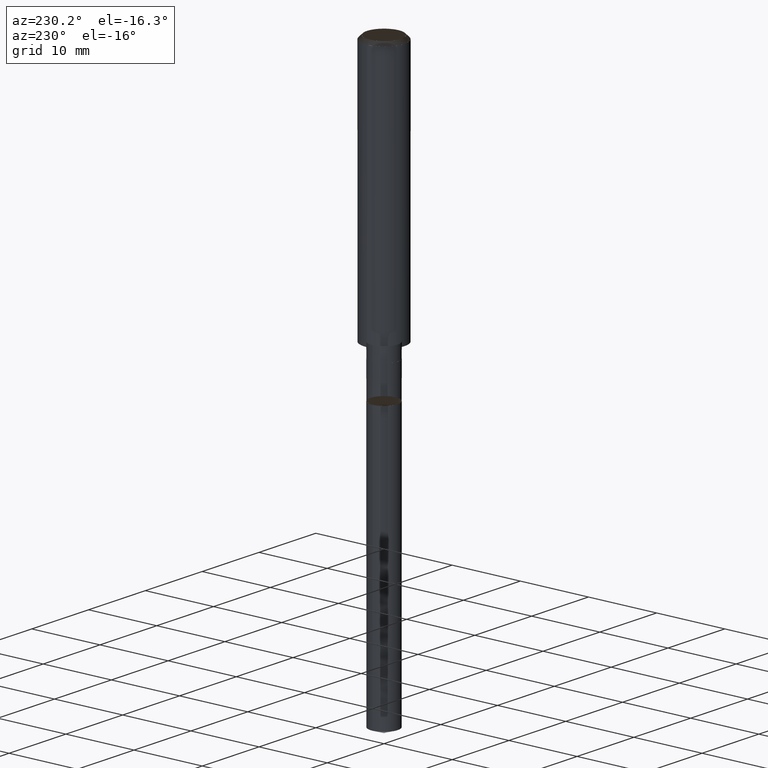
[diagram: clean part render]
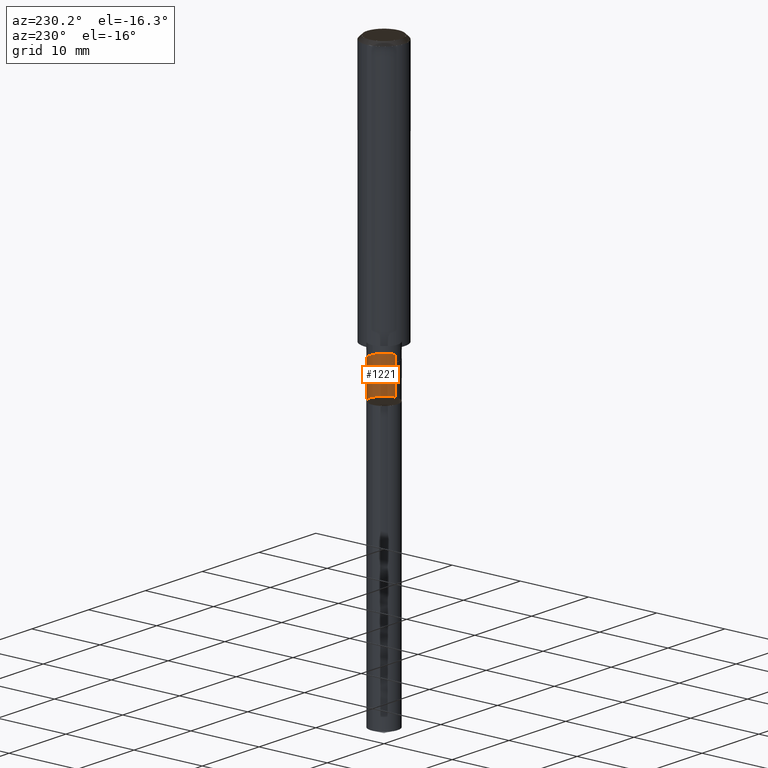
[diagram: same view with one face highlighted and labeled with its STEP entity id]
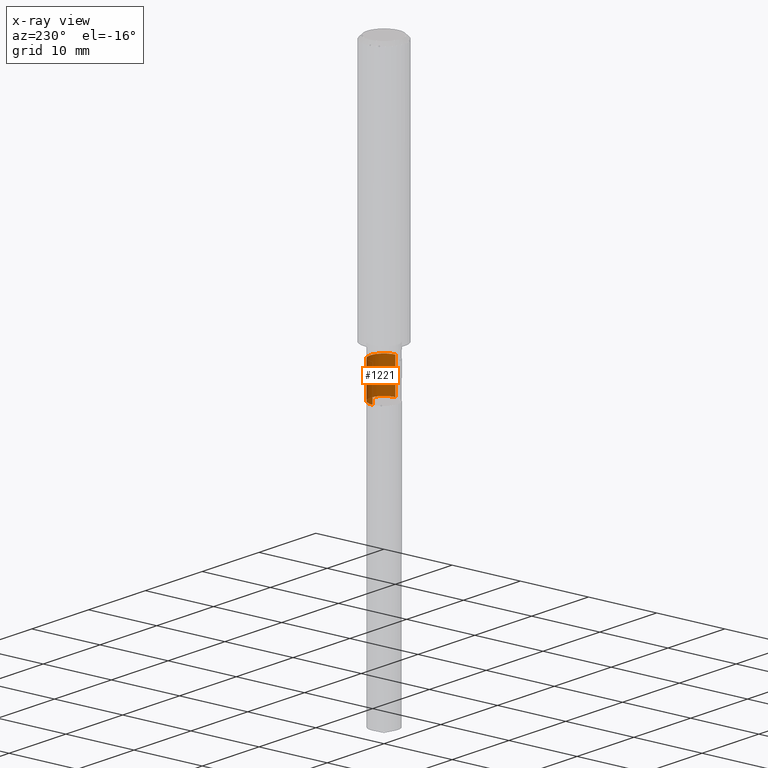
[diagram: x-ray of the same camera — body ghosted, the highlighted face saturated]
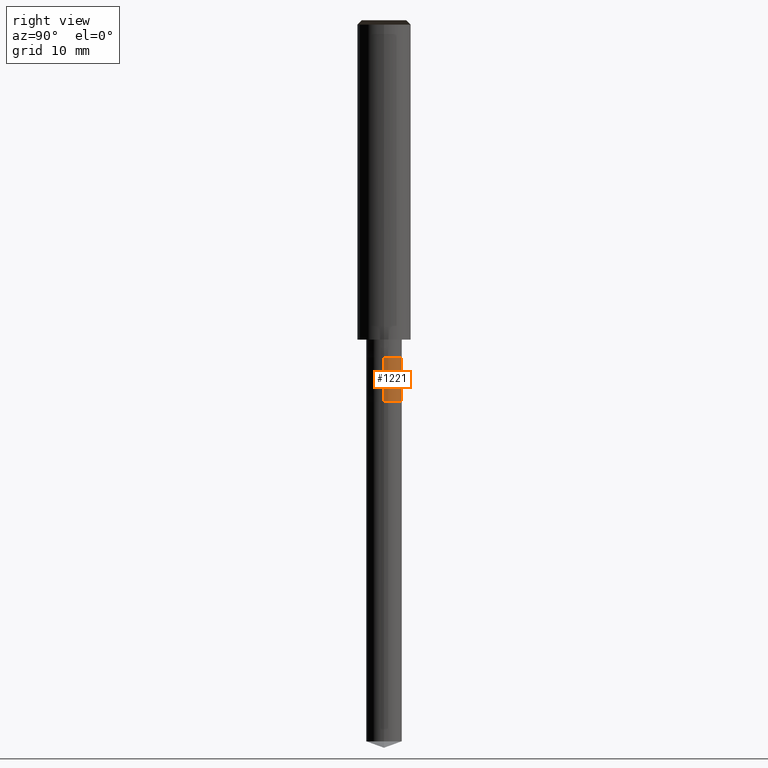
[diagram: same view with one face highlighted and labeled with its STEP entity id]
A machine part, auxiliary view. The second image highlights one B-rep face of the part: STEP entity #1221.
The next image is the same camera in x-ray: the body ghosted, the highlighted face saturated — about 0% of this face is hidden behind the body in this view.
A second angle (right view) of the same face is appended — the face is thin or edge-on in the first view.
In plain terms, the highlighted face is a freeform B-spline surface patch.
Its self-contained STEP definition (entity closure, byte-faithful):
#1020=CARTESIAN_POINT('',(2.0,0.0,-7.0));
#1021=CARTESIAN_POINT('',(2.0,2.0,-7.0));
#1022=CARTESIAN_POINT('',(0.0,2.0,-7.0));
#1023=CARTESIAN_POINT('',(-2.0,2.0,-7.0));
#1024=CARTESIAN_POINT('',(-2.0,0.0,-7.0));
#1032=CARTESIAN_POINT('',(2.0,0.0,-2.0));
#1033=CARTESIAN_POINT('',(2.0,2.0,-2.0));
#1034=CARTESIAN_POINT('',(0.0,2.0,-2.0));
#1035=CARTESIAN_POINT('',(-2.0,2.0,-2.0));
#1036=CARTESIAN_POINT('',(-2.0,0.0,-2.0));
#1202=(
BOUNDED_SURFACE()
B_SPLINE_SURFACE(1,2,(
(#1020,#1021,#1022,#1023,#1024),
(#1032,#1033,#1034,#1035,#1036)
), .UNSPECIFIED.,.F.,.F.,.F.)
B_SPLINE_SURFACE_WITH_KNOTS((2,2),(3,2,3),(
0.0,1.0),(
0.0,0.5,1.0), .UNSPECIFIED.)
GEOMETRIC_REPRESENTATION_ITEM()
RATIONAL_B_SPLINE_SURFACE(((1.0,0.707106781187,1.0,0.707106781187,1.0),
(1.0,0.707106781187,1.0,0.707106781187,1.0)
))
REPRESENTATION_ITEM('')
SURFACE()
);
#1203=(
BOUNDED_CURVE()
B_SPLINE_CURVE(2,(#1024,#1023,#1022,#1021,#1020),.UNSPECIFIED.,.F.,.F.)
B_SPLINE_CURVE_WITH_KNOTS((3,2,3),
(0.0,0.5,1.0),.UNSPECIFIED.)
CURVE()
GEOMETRIC_REPRESENTATION_ITEM()
RATIONAL_B_SPLINE_CURVE((1.0,0.707106781187,1.0,0.707106781187,1.0))
REPRESENTATION_ITEM('')
);
#1204=(
BOUNDED_CURVE()
B_SPLINE_CURVE(1,(#1020,#1032),.UNSPECIFIED.,.F.,.F.)
B_SPLINE_CURVE_WITH_KNOTS((2,2),
(0.0,1.0),.UNSPECIFIED.)
CURVE()
GEOMETRIC_REPRESENTATION_ITEM()
RATIONAL_B_SPLINE_CURVE((1.0,1.0))
REPRESENTATION_ITEM('')
);
#1205=(
BOUNDED_CURVE()
B_SPLINE_CURVE(2,(#1032,#1033,#1034,#1035,#1036),.UNSPECIFIED.,.F.,.F.)
B_SPLINE_CURVE_WITH_KNOTS((3,2,3),
(0.0,0.5,1.0),.UNSPECIFIED.)
CURVE()
GEOMETRIC_REPRESENTATION_ITEM()
RATIONAL_B_SPLINE_CURVE((1.0,0.707106781187,1.0,0.707106781187,1.0))
REPRESENTATION_ITEM('')
);
#1206=(
BOUNDED_CURVE()
B_SPLINE_CURVE(1,(#1036,#1024),.UNSPECIFIED.,.F.,.F.)
B_SPLINE_CURVE_WITH_KNOTS((2,2),
(0.0,1.0),.UNSPECIFIED.)
CURVE()
GEOMETRIC_REPRESENTATION_ITEM()
RATIONAL_B_SPLINE_CURVE((1.0,1.0))
REPRESENTATION_ITEM('')
);
#1207=VERTEX_POINT('',#1020);
#1208=VERTEX_POINT('',#1024);
#1209=VERTEX_POINT('',#1032);
#1210=VERTEX_POINT('',#1036);
#1211=EDGE_CURVE('',#1208,#1207,#1203,.T.);
#1212=EDGE_CURVE('',#1207,#1209,#1204,.T.);
#1213=EDGE_CURVE('',#1209,#1210,#1205,.T.);
#1214=EDGE_CURVE('',#1210,#1208,#1206,.T.);
#1215=ORIENTED_EDGE('',*,*,#1211,.T.);
#1216=ORIENTED_EDGE('',*,*,#1212,.T.);
#1217=ORIENTED_EDGE('',*,*,#1213,.T.);
#1218=ORIENTED_EDGE('',*,*,#1214,.T.);
#1219=EDGE_LOOP('',(#1215,#1216,#1217,#1218));
#1220=FACE_OUTER_BOUND('',#1219,.T.);
#1221=ADVANCED_FACE('',(#1220),#1202,.T.);